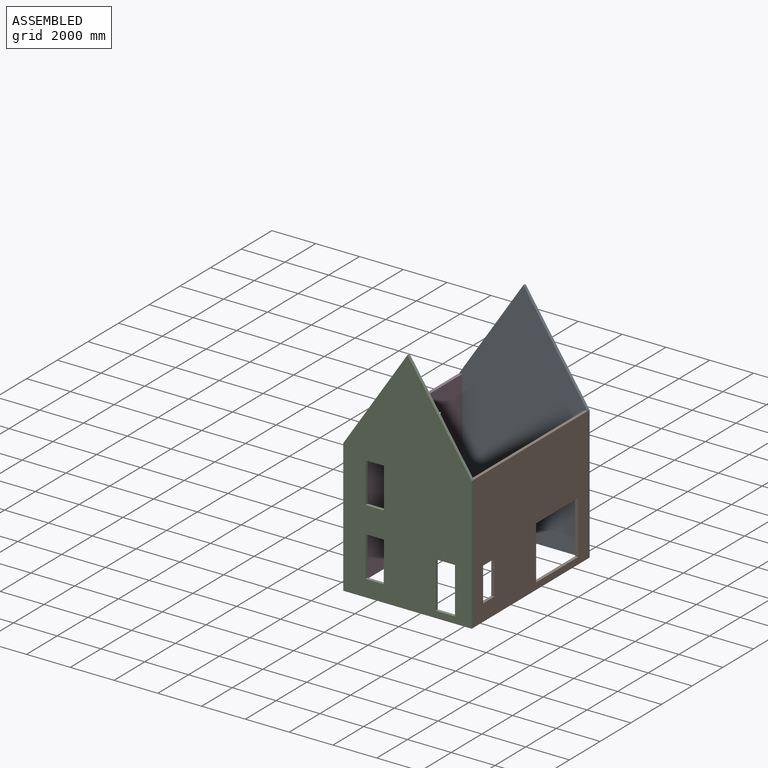
[diagram: assembled view]
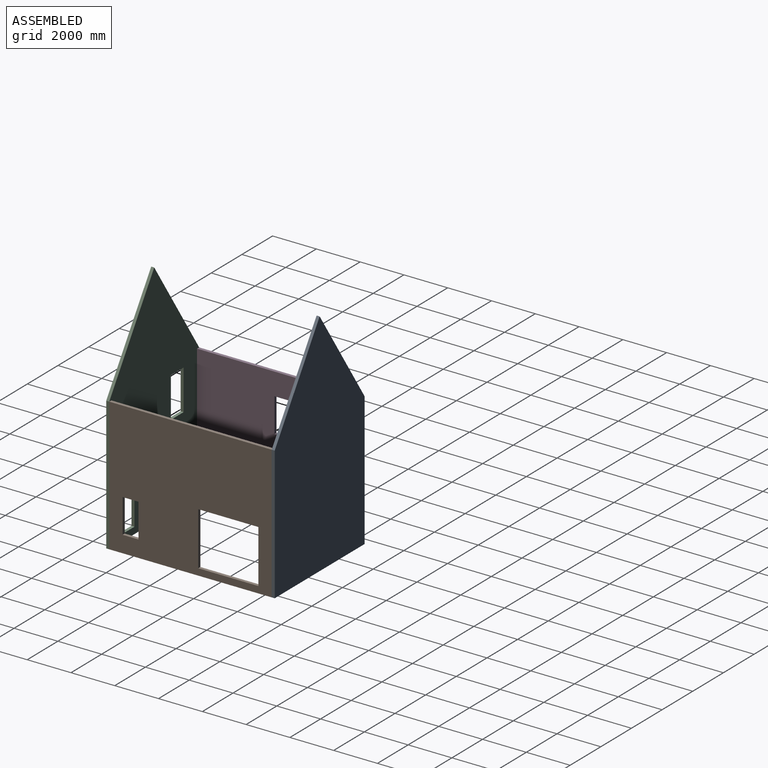
[diagram: assembled view, second angle]
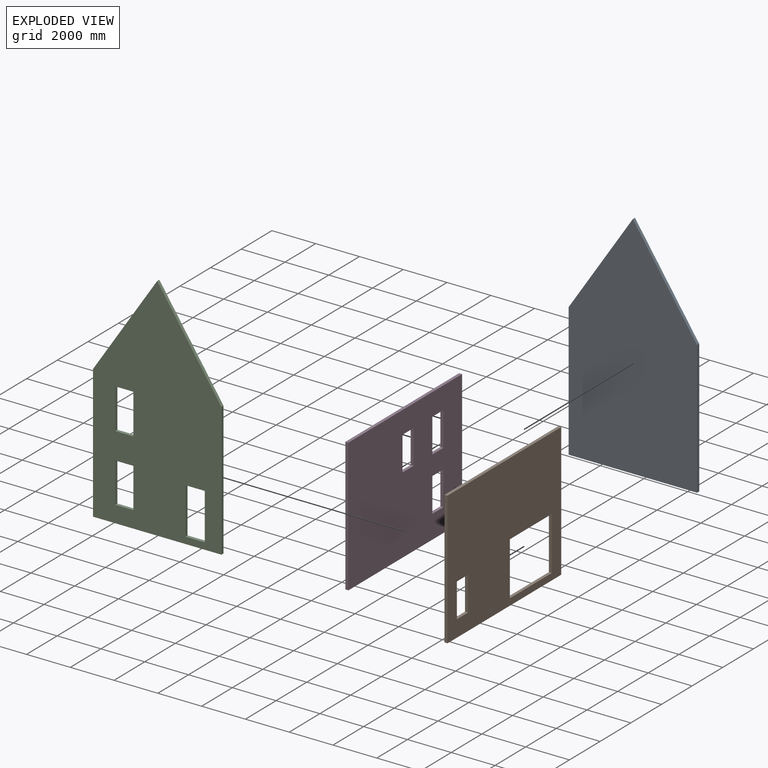
[diagram: exploded view]
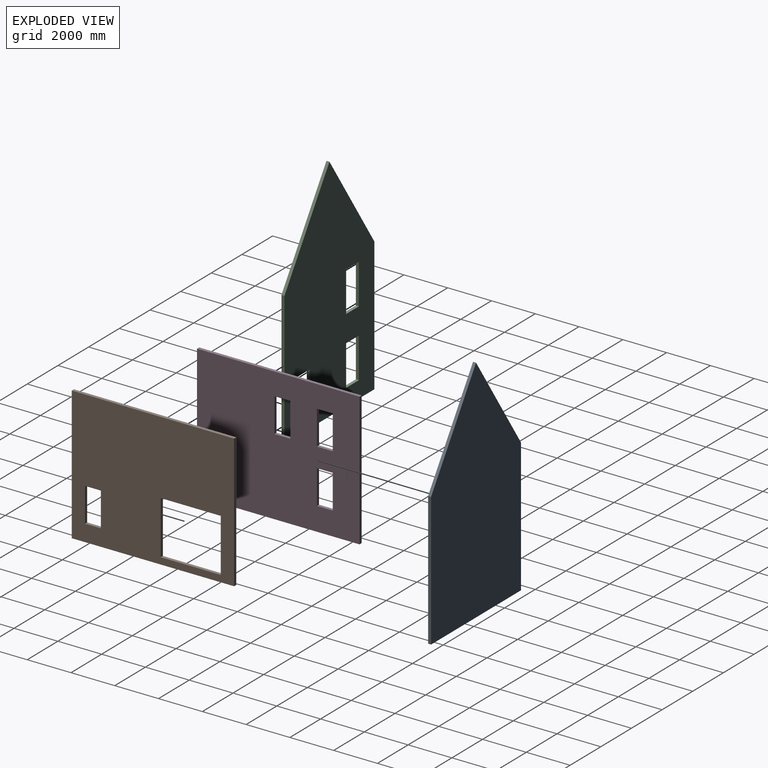
[diagram: exploded view, second angle]
ASSEMBLY  parts=4 mates=3
PART A: 7 faces, bbox 5867.4x138.3x10515.6 mm
  f0: plane 4419.6x2933.7mm, normal (-0.83,0,0.55), area 733482.5mm2, adj f1,f4,f5,f6
  f1: plane 6096x138.27mm, normal (-1,0,0), area 842901.5mm2, adj f0,f2,f5,f6
  f2: plane 5867.4x138.27mm, normal (0,0,-1), area 811292.7mm2, adj f1,f3,f5,f6
  f3: plane 6096x138.27mm, normal (1,0,0), area 842901.5mm2, adj f2,f4,f5,f6
  f4: plane 4419.6x2933.7mm, normal (0.83,0,0.55), area 733482.5mm2, adj f0,f3,f5,f6
  f5: plane 10515.6x5867.4mm, normal (0,-1,0), area 48733450.9mm2, adj f0,f1,f2,f3,f4
  f6: plane 10515.6x5867.4mm, normal (0,1,0), area 48733450.9mm2, adj f0,f1,f2,f3,f4
PART B: 14 faces, bbox 138.3x7419.7x6096 mm
  f0: plane 7419.66x6096mm, normal (1,0,0), area 37409421mm2, adj f2,f3,f4,f5,f6,f7,f8,f9
  f1: plane 7419.66x6096mm, normal (-1,0,0), area 37409421mm2, adj f2,f3,f4,f5,f6,f7,f8,f9
  f2: plane 7419.66x138.27mm, normal (0,0,1), area 1025925.3mm2, adj f0,f1,f3,f5
  f3: plane 6096x138.27mm, normal (0,-1,0), area 842901.5mm2, adj f0,f1,f2,f4
  f4: plane 7419.66x138.27mm, normal (0,0,-1), area 1025925.3mm2, adj f0,f1,f3,f5
  f5: plane 6096x138.27mm, normal (0,1,0), area 842901.5mm2, adj f0,f1,f2,f4
  f6: plane 1559.7x138.27mm, normal (0,-1,0), area 215661.6mm2, adj f0,f1,f7,f9
  f7: plane 725.65x138.27mm, normal (0,0,1), area 100336.2mm2, adj f0,f1,f6,f8
  f8: plane 1559.7x138.27mm, normal (0,1,0), area 215661.6mm2, adj f0,f1,f7,f9
  f9: plane 725.65x138.27mm, normal (0,0,-1), area 100336.2mm2, adj f0,f1,f6,f8
  f10: plane 2743.2x138.27mm, normal (0,0,-1), area 379305.7mm2, adj f0,f1,f11,f13
  f11: plane 2438.4x138.27mm, normal (0,-1,0), area 337160.6mm2, adj f0,f1,f10,f12
  f12: plane 2743.2x138.27mm, normal (0,0,1), area 379305.7mm2, adj f0,f1,f11,f13
  f13: plane 2438.4x138.27mm, normal (0,1,0), area 337160.6mm2, adj f0,f1,f10,f12
PART C: 19 faces, bbox 5867.4x138.3x10515.6 mm
  f0: plane 10515.6x5867.4mm, normal (0,-1,0), area 43789862.4mm2, adj f2,f3,f4,f5,f6,f7,f8,f9
  f1: plane 10515.6x5867.4mm, normal (0,1,0), area 43789862.4mm2, adj f2,f3,f4,f5,f6,f7,f8,f9
  f2: plane 4419.6x2933.7mm, normal (-0.83,0,0.55), area 733482.5mm2, adj f0,f1,f3,f6
  f3: plane 6096x138.27mm, normal (-1,0,0), area 842901.5mm2, adj f0,f1,f2,f4
  f4: plane 5867.4x138.27mm, normal (0,0,-1), area 811292.7mm2, adj f0,f1,f3,f5
  f5: plane 6096x138.27mm, normal (1,0,0), area 842901.5mm2, adj f0,f1,f4,f6
  f6: plane 4419.6x2933.7mm, normal (0.83,0,0.55), area 733482.5mm2, adj f0,f1,f2,f5
  f7: plane 1841.77x138.27mm, normal (1,0,0), area 254664.3mm2, adj f0,f1,f8,f10
  f8: plane 831.84x138.27mm, normal (0,0,1), area 115019.5mm2, adj f0,f1,f7,f9
  f9: plane 1841.77x138.27mm, normal (-1,0,0), area 254664.3mm2, adj f0,f1,f8,f10
  f10: plane 831.84x138.27mm, normal (0,0,-1), area 115019.5mm2, adj f0,f1,f7,f9
  f11: plane 2123.85x138.27mm, normal (1,0,0), area 293666.9mm2, adj f0,f1,f12,f14
  f12: plane 884.94x138.27mm, normal (0,0,1), area 122361.2mm2, adj f0,f1,f11,f13
  f13: plane 2123.85x138.27mm, normal (-1,0,0), area 293666.9mm2, adj f0,f1,f12,f14
  f14: plane 884.94x138.27mm, normal (0,0,-1), area 122361.2mm2, adj f0,f1,f11,f13
  f15: plane 831.84x138.27mm, normal (0,0,-1), area 115019.5mm2, adj f0,f1,f16,f18
  f16: plane 1841.77x138.27mm, normal (1,0,0), area 254664.3mm2, adj f0,f1,f15,f17
  f17: plane 831.84x138.27mm, normal (0,0,1), area 115019.5mm2, adj f0,f1,f16,f18
  f18: plane 1841.77x138.27mm, normal (-1,0,0), area 254664.3mm2, adj f0,f1,f15,f17
PART D: 18 faces, bbox 138.3x7419.7x6096 mm
  f0: plane 7419.66x138.27mm, normal (0,0,1), area 1025925.3mm2, adj f1,f3,f4,f5
  f1: plane 6096x138.27mm, normal (0,-1,0), area 842901.5mm2, adj f0,f2,f4,f5
  f2: plane 7419.66x138.27mm, normal (0,0,-1), area 1025925.3mm2, adj f1,f3,f4,f5
  f3: plane 6096x138.27mm, normal (0,1,0), area 842901.5mm2, adj f0,f2,f4,f5
  f4: plane 7419.66x6096mm, normal (1,0,0), area 41834855.5mm2, adj f0,f1,f2,f3,f6,f7,f8,f9
  f5: plane 7419.66x6096mm, normal (-1,0,0), area 41834855.5mm2, adj f0,f1,f2,f3,f6,f7,f8,f9
  f6: plane 1559.7x138.27mm, normal (0,-1,0), area 215661.6mm2, adj f4,f5,f7,f9
  f7: plane 725.65x138.27mm, normal (0,0,1), area 100336.2mm2, adj f4,f5,f6,f8
  f8: plane 1559.7x138.27mm, normal (0,1,0), area 215661.6mm2, adj f4,f5,f7,f9
  f9: plane 725.65x138.27mm, normal (0,0,-1), area 100336.2mm2, adj f4,f5,f6,f8
  f10: plane 1559.7x138.27mm, normal (0,-1,0), area 215661.6mm2, adj f4,f5,f11,f13
  f11: plane 725.65x138.27mm, normal (0,0,1), area 100336.2mm2, adj f4,f5,f10,f12
  f12: plane 1559.7x138.27mm, normal (0,1,0), area 215661.6mm2, adj f4,f5,f11,f13
  f13: plane 725.65x138.27mm, normal (0,0,-1), area 100336.2mm2, adj f4,f5,f10,f12
  f14: plane 1559.7x138.27mm, normal (0,-1,0), area 215661.6mm2, adj f4,f5,f15,f17
  f15: plane 725.65x138.27mm, normal (0,0,1), area 100336.2mm2, adj f4,f5,f14,f16
  f16: plane 1559.7x138.27mm, normal (0,1,0), area 215661.6mm2, adj f4,f5,f15,f17
  f17: plane 725.65x138.27mm, normal (0,0,-1), area 100336.2mm2, adj f4,f5,f14,f16
PLACE A t=(-1257.9,10731.65,-2000.35)mm
PLACE B t=(4471.23,3173.72,-2000.35)mm
PLACE C t=(-1257.9,3173.72,-2000.35)mm fixed
PLACE D t=(-1257.9,3173.72,-2000.35)mm
MATE fastened A.f5 <-> B.f5  axis (0,-1,0) through (4609.5,10593.38,-2000.35)mm
MATE fastened B.f0 <-> C.f5  axis (1,0,0) through (4609.5,3173.72,-2000.35)mm
MATE fastened D.f5 <-> C.f3  axis (-1,0,0) through (-1257.9,3173.72,-2000.35)mm
